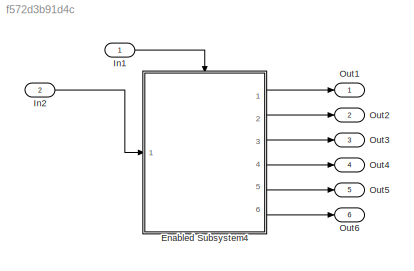
MODEL slx_f572d3b91d4c
KIND model
CONFIG AbsTol = auto
CONFIG EnableMultiTasking = on
CONFIG FixedStep = 1.000000
CONFIG MaxStep = auto
CONFIG MinStep = auto
CONFIG RelTol = 1e-3
CONFIG SampleTimeConstraint = Unconstrained
CONFIG Solver = FixedStepAuto
CONFIG SolverName = FixedStepAuto
CONFIG StartTime = 0.0
CONFIG StopTime = 10.0
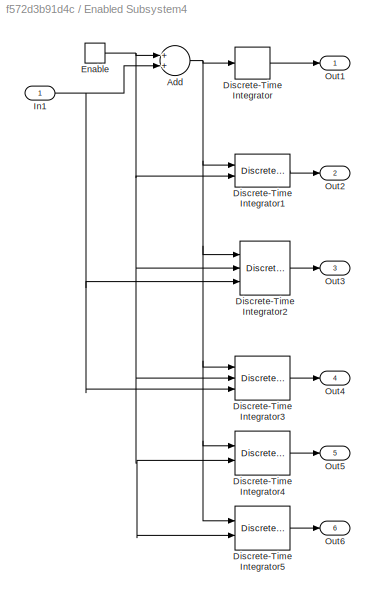
BLOCK [SubSystem] Enabled Subsystem4
  Ports = [1, 6, 1]
  RequestExecContextInheritance = off
  TreatAsAtomicUnit = on
  Variant = off
BLOCK [Sum] Enabled Subsystem4/Add
  InputSameDT = off
  OutDataTypeStr = Inherit: Inherit via internal rule
  Ports = [2, 1]
  SaturateOnIntegerOverflow = off
BLOCK [DiscreteIntegrator] Enabled Subsystem4/Discrete-Time Integrator
  ICPrevOutput = DiscIntNeverNeededParam
  ICPrevScaledInput = DiscIntNeverNeededParam
  InitialConditionSetting = State (most efficient)
  Ports = [1, 1]
BLOCK [DiscreteIntegrator] Enabled Subsystem4/Discrete-Time Integrator1
  ExternalReset = falling
  ICPrevOutput = DiscIntNeverNeededParam
  ICPrevScaledInput = DiscIntNeverNeededParam
  InitialCondition = 0.2
  InitialConditionSetting = State (most efficient)
  Ports = [2, 1]
BLOCK [DiscreteIntegrator] Enabled Subsystem4/Discrete-Time Integrator2
  ExternalReset = rising
  ICPrevOutput = DiscIntNeverNeededParam
  ICPrevScaledInput = DiscIntNeverNeededParam
  InitialConditionSetting = State (most efficient)
  InitialConditionSource = external
  Ports = [3, 1]
BLOCK [DiscreteIntegrator] Enabled Subsystem4/Discrete-Time Integrator3
  ExternalReset = level
  ICPrevOutput = DiscIntNeverNeededParam
  ICPrevScaledInput = DiscIntNeverNeededParam
  InitialConditionSetting = State (most efficient)
  InitialConditionSource = external
  Ports = [3, 1]
BLOCK [DiscreteIntegrator] Enabled Subsystem4/Discrete-Time Integrator4
  ExternalReset = either
  ICPrevOutput = DiscIntNeverNeededParam
  ICPrevScaledInput = DiscIntNeverNeededParam
  InitialCondition = 0.2
  InitialConditionSetting = State (most efficient)
  Ports = [2, 1]
BLOCK [DiscreteIntegrator] Enabled Subsystem4/Discrete-Time Integrator5
  ExternalReset = sampled level
  ICPrevOutput = DiscIntNeverNeededParam
  ICPrevScaledInput = DiscIntNeverNeededParam
  InitialCondition = 0.2
  InitialConditionSetting = State (most efficient)
  Ports = [2, 1]
BLOCK [EnablePort] Enabled Subsystem4/Enable
  Ports = [0, 1]
  ShowOutputPort = on
  StatesWhenEnabling = reset
BLOCK [Inport] Enabled Subsystem4/In1
  IconDisplay = Port number
BLOCK [Outport] Enabled Subsystem4/Out1
  IconDisplay = Port number
BLOCK [Outport] Enabled Subsystem4/Out2
  IconDisplay = Port number
  Port = 2
BLOCK [Outport] Enabled Subsystem4/Out3
  IconDisplay = Port number
  Port = 3
BLOCK [Outport] Enabled Subsystem4/Out4
  IconDisplay = Port number
  Port = 4
BLOCK [Outport] Enabled Subsystem4/Out5
  IconDisplay = Port number
  Port = 5
BLOCK [Outport] Enabled Subsystem4/Out6
  IconDisplay = Port number
  Port = 6
BLOCK [Inport] In1
  IconDisplay = Port number
  OutDataTypeStr = boolean
BLOCK [Inport] In2
  IconDisplay = Port number
  OutDataTypeStr = double
  Port = 2
BLOCK [Outport] Out1
  IconDisplay = Port number
BLOCK [Outport] Out2
  IconDisplay = Port number
  Port = 2
BLOCK [Outport] Out3
  IconDisplay = Port number
  Port = 3
BLOCK [Outport] Out4
  IconDisplay = Port number
  Port = 4
BLOCK [Outport] Out5
  IconDisplay = Port number
  Port = 5
BLOCK [Outport] Out6
  IconDisplay = Port number
  Port = 6
NET Enabled Subsystem4/Add:1 -> Enabled Subsystem4/Discrete-Time Integrator1:1, Enabled Subsystem4/Discrete-Time Integrator2:1, Enabled Subsystem4/Discrete-Time Integrator3:1, Enabled Subsystem4/Discrete-Time Integrator4:1, Enabled Subsystem4/Discrete-Time Integrator5:1, Enabled Subsystem4/Discrete-Time Integrator:1
LINE Enabled Subsystem4/Discrete-Time Integrator1:1 -> Enabled Subsystem4/Out2:1
LINE Enabled Subsystem4/Discrete-Time Integrator2:1 -> Enabled Subsystem4/Out3:1
LINE Enabled Subsystem4/Discrete-Time Integrator3:1 -> Enabled Subsystem4/Out4:1
LINE Enabled Subsystem4/Discrete-Time Integrator4:1 -> Enabled Subsystem4/Out5:1
LINE Enabled Subsystem4/Discrete-Time Integrator5:1 -> Enabled Subsystem4/Out6:1
LINE Enabled Subsystem4/Discrete-Time Integrator:1 -> Enabled Subsystem4/Out1:1
NET Enabled Subsystem4/Enable:1 -> Enabled Subsystem4/Add:1, Enabled Subsystem4/Discrete-Time Integrator1:2, Enabled Subsystem4/Discrete-Time Integrator2:2, Enabled Subsystem4/Discrete-Time Integrator3:2, Enabled Subsystem4/Discrete-Time Integrator4:2, Enabled Subsystem4/Discrete-Time Integrator5:2
NET Enabled Subsystem4/In1:1 -> Enabled Subsystem4/Add:2, Enabled Subsystem4/Discrete-Time Integrator2:3, Enabled Subsystem4/Discrete-Time Integrator3:3
LINE Enabled Subsystem4:1 -> Out1:1
LINE Enabled Subsystem4:2 -> Out2:1
LINE Enabled Subsystem4:3 -> Out3:1
LINE Enabled Subsystem4:4 -> Out4:1
LINE Enabled Subsystem4:5 -> Out5:1
LINE Enabled Subsystem4:6 -> Out6:1
LINE In1:1 -> Enabled Subsystem4:enable
LINE In2:1 -> Enabled Subsystem4:1
note: NET lines group one-source signal fan-out (src -> all destinations, sorted); 1:1 wires keep LINE
